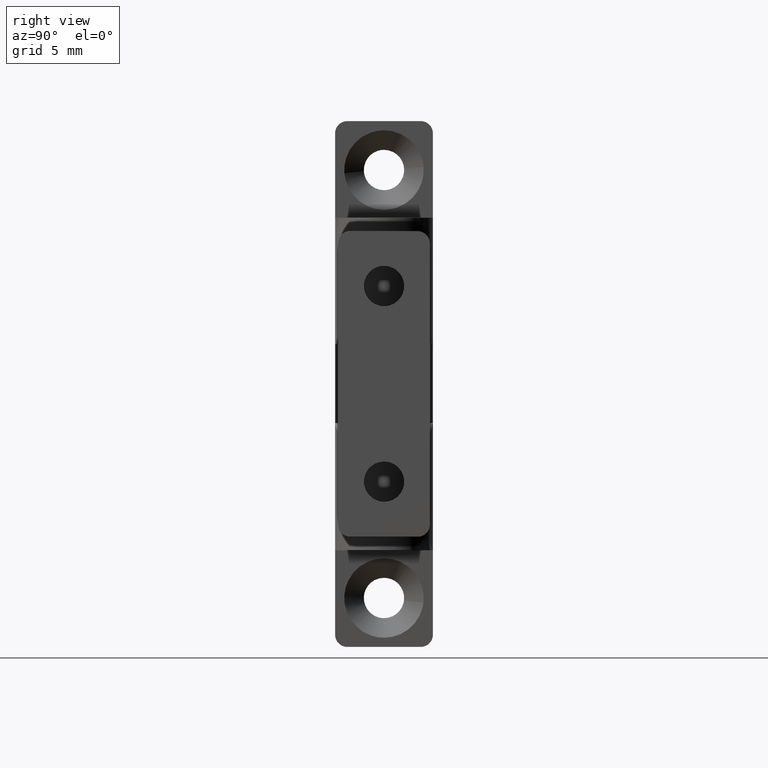
[diagram: clean part render]
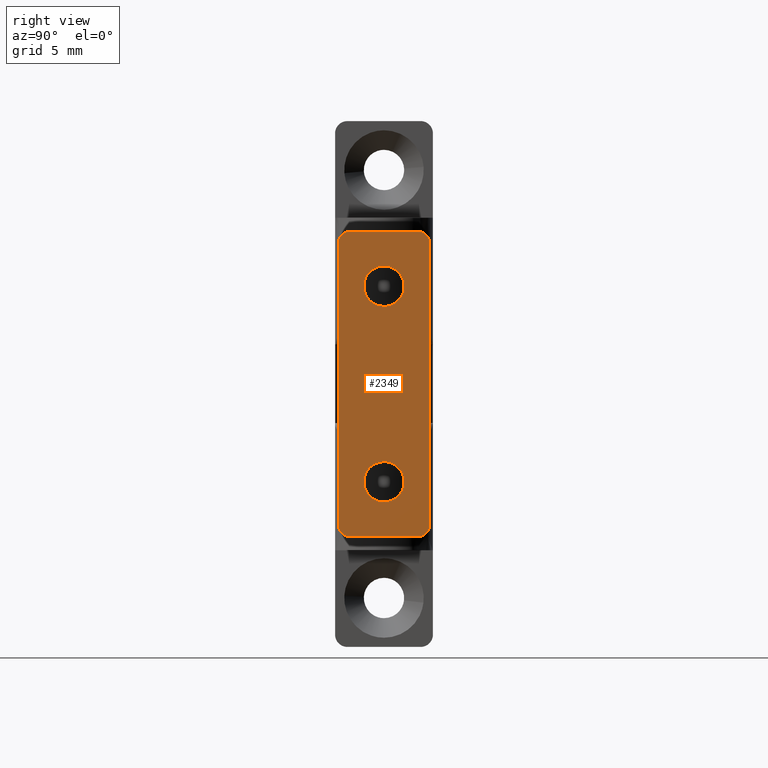
[diagram: same view with one face highlighted and labeled with its STEP entity id]
A machine part, right view. The second image highlights one B-rep face of the part: STEP entity #2349.
In plain terms, the highlighted face is a freeform B-spline surface patch.
Its self-contained STEP definition (entity closure, byte-faithful):
#881=CARTESIAN_POINT('',(7.870542492042405,-1.644913600659137,40.802882948054993));
#882=VERTEX_POINT('',#881);
#888=CARTESIAN_POINT('',(9.650000000000000,0.0,40.802882948054993));
#889=VERTEX_POINT('',#888);
#890=CARTESIAN_POINT('',(7.870542492042405,-1.644913600659137,40.802882948054986));
#891=CARTESIAN_POINT('',(7.935171323430664,-1.650000000000001,40.802882948054986));
#892=CARTESIAN_POINT('',(8.0,-1.650000000000000,40.802882948054993));
#893=CARTESIAN_POINT('',(9.650000000000000,-1.649999999999999,40.802882948055000));
#894=CARTESIAN_POINT('',(9.650000000000000,0.0,40.802882948054993));
#902=(BOUNDED_CURVE()B_SPLINE_CURVE(2,(#890,#891,#892,#893,#894),.UNSPECIFIED.,.F.,.U.)B_SPLINE_CURVE_WITH_KNOTS((3,2,3),(0.736331300631381,0.750000000000000,1.0),.UNSPECIFIED.)CURVE()GEOMETRIC_REPRESENTATION_ITEM()RATIONAL_B_SPLINE_CURVE((0.969723356168923,0.983986122579727,1.0,0.707106781186548,1.0))REPRESENTATION_ITEM(''));
#903=EDGE_CURVE('',#882,#889,#902,.T.);
#905=CARTESIAN_POINT('',(8.223321994554620,1.634817202854235,40.802882948055000));
#906=VERTEX_POINT('',#905);
#907=CARTESIAN_POINT('',(9.650000000000000,0.0,40.802882948054993));
#908=CARTESIAN_POINT('',(9.649999999999999,1.439927781997125,40.802882948055000));
#909=CARTESIAN_POINT('',(8.223321994554620,1.634817202854236,40.802882948054993));
#917=(BOUNDED_CURVE()B_SPLINE_CURVE(2,(#907,#908,#909),.UNSPECIFIED.,.F.,.U.)B_SPLINE_CURVE_WITH_KNOTS((3,3),(0.0,0.226621627895042),.UNSPECIFIED.)CURVE()GEOMETRIC_REPRESENTATION_ITEM()RATIONAL_B_SPLINE_CURVE((1.0,0.734496247812306,0.950343635888749))REPRESENTATION_ITEM(''));
#918=EDGE_CURVE('',#889,#906,#917,.T.);
#968=CARTESIAN_POINT('',(6.350000000000000,0.0,40.802882948054993));
#969=VERTEX_POINT('',#968);
#970=CARTESIAN_POINT('',(8.223321994554620,1.634817202854235,40.802882948054986));
#971=CARTESIAN_POINT('',(8.112177107091062,1.650000000000001,40.802882948054993));
#972=CARTESIAN_POINT('',(8.0,1.650000000000000,40.802882948054993));
#973=CARTESIAN_POINT('',(6.350000000000000,1.649999999999999,40.802882948055000));
#974=CARTESIAN_POINT('',(6.350000000000000,0.0,40.802882948054993));
#982=(BOUNDED_CURVE()B_SPLINE_CURVE(2,(#970,#971,#972,#973,#974),.UNSPECIFIED.,.F.,.U.)B_SPLINE_CURVE_WITH_KNOTS((3,2,3),(0.226621627895043,0.250000000000000,0.500000000000000),.UNSPECIFIED.)CURVE()GEOMETRIC_REPRESENTATION_ITEM()RATIONAL_B_SPLINE_CURVE((0.950343635888749,0.972610533374241,1.0,0.707106781186548,1.0))REPRESENTATION_ITEM(''));
#983=EDGE_CURVE('',#906,#969,#982,.T.);
#985=CARTESIAN_POINT('',(6.350000000000000,0.0,40.802882948054993));
#986=CARTESIAN_POINT('',(6.350000000000000,-1.525244311223668,40.802882948055000));
#987=CARTESIAN_POINT('',(7.870542492042405,-1.644913600659137,40.802882948054986));
#995=(BOUNDED_CURVE()B_SPLINE_CURVE(2,(#985,#986,#987),.UNSPECIFIED.,.F.,.U.)B_SPLINE_CURVE_WITH_KNOTS((3,3),(0.500000000000000,0.736331300631381),.UNSPECIFIED.)CURVE()GEOMETRIC_REPRESENTATION_ITEM()RATIONAL_B_SPLINE_CURVE((1.0,0.723120658606821,0.969723356168922))REPRESENTATION_ITEM(''));
#996=EDGE_CURVE('',#969,#882,#995,.T.);
#1283=CARTESIAN_POINT('',(-7.899269909752803,-1.646922417395182,40.802882948054993));
#1284=VERTEX_POINT('',#1283);
#1290=CARTESIAN_POINT('',(-6.350000000000000,0.0,40.802882948054993));
#1291=VERTEX_POINT('',#1290);
#1292=CARTESIAN_POINT('',(-6.350000000000000,0.0,40.802882948054993));
#1293=CARTESIAN_POINT('',(-6.350000000000001,-1.552165010366669,40.802882948054993));
#1294=CARTESIAN_POINT('',(-7.899269909752803,-1.646922417395183,40.802882948054986));
#1302=(BOUNDED_CURVE()B_SPLINE_CURVE(2,(#1292,#1293,#1294),.UNSPECIFIED.,.F.,.U.)B_SPLINE_CURVE_WITH_KNOTS((3,3),(0.500000000000000,0.739332962238892),.UNSPECIFIED.)CURVE()GEOMETRIC_REPRESENTATION_ITEM()RATIONAL_B_SPLINE_CURVE((1.0,0.719603993286770,0.976072041666608))REPRESENTATION_ITEM(''));
#1303=EDGE_CURVE('',#1291,#1284,#1302,.T.);
#1305=CARTESIAN_POINT('',(-9.650000000000000,0.0,40.802882948054993));
#1306=VERTEX_POINT('',#1305);
#1307=CARTESIAN_POINT('',(-9.650000000000000,0.0,40.802882948054993));
#1308=CARTESIAN_POINT('',(-9.650000000000000,1.649999999999999,40.802882948055000));
#1309=CARTESIAN_POINT('',(-8.0,1.650000000000000,40.802882948054993));
#1310=CARTESIAN_POINT('',(-6.350000000000000,1.649999999999999,40.802882948055000));
#1311=CARTESIAN_POINT('',(-6.350000000000000,0.0,40.802882948054993));
#1319=(BOUNDED_CURVE()B_SPLINE_CURVE(2,(#1307,#1308,#1309,#1310,#1311),.UNSPECIFIED.,.F.,.U.)B_SPLINE_CURVE_WITH_KNOTS((3,2,3),(0.0,0.250000000000000,0.500000000000000),.UNSPECIFIED.)CURVE()GEOMETRIC_REPRESENTATION_ITEM()RATIONAL_B_SPLINE_CURVE((1.0,0.707106781186548,1.0,0.707106781186548,1.0))REPRESENTATION_ITEM(''));
#1320=EDGE_CURVE('',#1306,#1291,#1319,.T.);
#1322=CARTESIAN_POINT('',(-9.544636904972970,-0.580169657768765,40.802882948055000));
#1323=VERTEX_POINT('',#1322);
#1324=CARTESIAN_POINT('',(-9.544636904972970,-0.580169657768765,40.802882948055000));
#1325=CARTESIAN_POINT('',(-9.650000000000000,-0.299652187035171,40.802882948054993));
#1326=CARTESIAN_POINT('',(-9.650000000000000,0.0,40.802882948054993));
#1334=(BOUNDED_CURVE()B_SPLINE_CURVE(2,(#1324,#1325,#1326),.UNSPECIFIED.,.F.,.U.)B_SPLINE_CURVE_WITH_KNOTS((3,3),(0.940284170894273,1.0),.UNSPECIFIED.)CURVE()GEOMETRIC_REPRESENTATION_ITEM()RATIONAL_B_SPLINE_CURVE((0.893499554630092,0.930038554396438,1.0))REPRESENTATION_ITEM(''));
#1335=EDGE_CURVE('',#1323,#1306,#1334,.T.);
#1375=CARTESIAN_POINT('',(-7.899269909752803,-1.646922417395182,40.802882948054979));
#1376=CARTESIAN_POINT('',(-7.949587940542607,-1.650000000000000,40.802882948054986));
#1377=CARTESIAN_POINT('',(-8.0,-1.650000000000000,40.802882948054993));
#1378=CARTESIAN_POINT('',(-9.142805832859949,-1.649999999999999,40.802882948054993));
#1379=CARTESIAN_POINT('',(-9.544636904972970,-0.580169657768765,40.802882948055000));
#1387=(BOUNDED_CURVE()B_SPLINE_CURVE(2,(#1375,#1376,#1377,#1378,#1379),.UNSPECIFIED.,.F.,.U.)B_SPLINE_CURVE_WITH_KNOTS((3,2,3),(0.739332962238892,0.750000000000000,0.940284170894272),.UNSPECIFIED.)CURVE()GEOMETRIC_REPRESENTATION_ITEM()RATIONAL_B_SPLINE_CURVE((0.976072041666608,0.987502787899778,1.0,0.777068226790111,0.893499554630090))REPRESENTATION_ITEM(''));
#1388=EDGE_CURVE('',#1284,#1323,#1387,.T.);
#1552=CARTESIAN_POINT('',(-11.500000000000000,3.750000000000000,40.802882948054993));
#1553=VERTEX_POINT('',#1552);
#1554=CARTESIAN_POINT('',(-12.500000000000000,2.750000000000000,40.802882948054993));
#1555=VERTEX_POINT('',#1554);
#1556=CARTESIAN_POINT('',(-11.500000000000000,3.750000000000000,40.802882948054993));
#1557=CARTESIAN_POINT('',(-12.500000000000000,3.749999999999999,40.802882948055000));
#1558=CARTESIAN_POINT('',(-12.500000000000000,2.750000000000000,40.802882948054993));
#1566=(BOUNDED_CURVE()B_SPLINE_CURVE(2,(#1556,#1557,#1558),.UNSPECIFIED.,.F.,.U.)CURVE()GEOMETRIC_REPRESENTATION_ITEM()QUASI_UNIFORM_CURVE()RATIONAL_B_SPLINE_CURVE((1.0,0.707106781186548,1.0))REPRESENTATION_ITEM(''));
#1567=EDGE_CURVE('',#1553,#1555,#1566,.T.);
#1613=CARTESIAN_POINT('',(-12.500000000000000,-2.750000000000000,40.802882948054993));
#1614=VERTEX_POINT('',#1613);
#1615=CARTESIAN_POINT('',(-11.500000000000000,-3.750000000000000,40.802882948054993));
#1616=VERTEX_POINT('',#1615);
#1617=CARTESIAN_POINT('',(-12.500000000000000,-2.750000000000000,40.802882948054993));
#1618=CARTESIAN_POINT('',(-12.500000000000000,-3.749999999999999,40.802882948055000));
#1619=CARTESIAN_POINT('',(-11.500000000000000,-3.750000000000000,40.802882948054993));
#1627=(BOUNDED_CURVE()B_SPLINE_CURVE(2,(#1617,#1618,#1619),.UNSPECIFIED.,.F.,.U.)CURVE()GEOMETRIC_REPRESENTATION_ITEM()QUASI_UNIFORM_CURVE()RATIONAL_B_SPLINE_CURVE((1.0,0.707106781186548,1.0))REPRESENTATION_ITEM(''));
#1628=EDGE_CURVE('',#1614,#1616,#1627,.T.);
#1691=CARTESIAN_POINT('',(11.500000000000000,3.750000000000000,40.802882948054993));
#1692=VERTEX_POINT('',#1691);
#1698=CARTESIAN_POINT('',(12.500000000000000,2.750000000000000,40.802882948054993));
#1699=VERTEX_POINT('',#1698);
#1700=CARTESIAN_POINT('',(12.500000000000000,2.750000000000000,40.802882948054993));
#1701=CARTESIAN_POINT('',(12.500000000000000,3.749999999999999,40.802882948055000));
#1702=CARTESIAN_POINT('',(11.500000000000000,3.750000000000000,40.802882948054993));
#1710=(BOUNDED_CURVE()B_SPLINE_CURVE(2,(#1700,#1701,#1702),.UNSPECIFIED.,.F.,.U.)CURVE()GEOMETRIC_REPRESENTATION_ITEM()QUASI_UNIFORM_CURVE()RATIONAL_B_SPLINE_CURVE((1.0,0.707106781186548,1.0))REPRESENTATION_ITEM(''));
#1711=EDGE_CURVE('',#1699,#1692,#1710,.T.);
#1752=CARTESIAN_POINT('',(12.500000000000000,-2.750000000000000,40.802882948054993));
#1753=VERTEX_POINT('',#1752);
#1759=CARTESIAN_POINT('',(11.500000000000000,-3.750000000000000,40.802882948054993));
#1760=VERTEX_POINT('',#1759);
#1761=CARTESIAN_POINT('',(11.500000000000000,-3.750000000000000,40.802882948054993));
#1762=CARTESIAN_POINT('',(12.500000000000000,-3.749999999999999,40.802882948055000));
#1763=CARTESIAN_POINT('',(12.500000000000000,-2.750000000000000,40.802882948054993));
#1771=(BOUNDED_CURVE()B_SPLINE_CURVE(2,(#1761,#1762,#1763),.UNSPECIFIED.,.F.,.U.)CURVE()GEOMETRIC_REPRESENTATION_ITEM()QUASI_UNIFORM_CURVE()RATIONAL_B_SPLINE_CURVE((1.0,0.707106781186548,1.0))REPRESENTATION_ITEM(''));
#1772=EDGE_CURVE('',#1760,#1753,#1771,.T.);
#1787=CARTESIAN_POINT('',(11.500000000000000,3.750000000000000,40.802882948054993));
#1788=CARTESIAN_POINT('',(-11.500000000000000,3.750000000000000,40.802882948054993));
#1789=QUASI_UNIFORM_CURVE('',1,(#1787,#1788),.UNSPECIFIED.,.F.,.U.);
#1790=EDGE_CURVE('',#1692,#1553,#1789,.T.);
#1937=CARTESIAN_POINT('',(11.500000000000000,-3.750000000000000,40.802882948054993));
#1938=CARTESIAN_POINT('',(-11.500000000000000,-3.750000000000000,40.802882948054993));
#1939=QUASI_UNIFORM_CURVE('',1,(#1937,#1938),.UNSPECIFIED.,.F.,.U.);
#1940=EDGE_CURVE('',#1760,#1616,#1939,.T.);
#2309=CARTESIAN_POINT('',(-12.500000000000000,-2.750000000000000,40.802882948054993));
#2310=CARTESIAN_POINT('',(-12.500000000000000,2.750000000000000,40.802882948054993));
#2311=QUASI_UNIFORM_CURVE('',1,(#2309,#2310),.UNSPECIFIED.,.F.,.U.);
#2312=EDGE_CURVE('',#1614,#1555,#2311,.T.);
#2318=CARTESIAN_POINT('',(13.748749951545150,-4.124624985463544,40.802882948054993));
#2319=CARTESIAN_POINT('',(-13.748750622097401,-4.124624985463544,40.802882948054993));
#2320=CARTESIAN_POINT('',(13.748749951545150,4.124625186629221,40.802882948054993));
#2321=CARTESIAN_POINT('',(-13.748750622097401,4.124625186629221,40.802882948054993));
#2322=B_SPLINE_SURFACE_WITH_KNOTS('',1,1,((#2318,#2320),(#2319,#2321)),.UNSPECIFIED.,.F.,.F.,.U.,(2,2),(2,2),(0.0,27.497500573642551),(0.0,8.249250172092765),.UNSPECIFIED.);
#2323=ORIENTED_EDGE('',*,*,#1940,.F.);
#2324=ORIENTED_EDGE('',*,*,#1772,.T.);
#2325=CARTESIAN_POINT('',(12.500000000000000,-2.750000000000000,40.802882948054993));
#2326=CARTESIAN_POINT('',(12.500000000000000,2.750000000000000,40.802882948054993));
#2327=QUASI_UNIFORM_CURVE('',1,(#2325,#2326),.UNSPECIFIED.,.F.,.U.);
#2328=EDGE_CURVE('',#1753,#1699,#2327,.T.);
#2329=ORIENTED_EDGE('',*,*,#2328,.T.);
#2330=ORIENTED_EDGE('',*,*,#1711,.T.);
#2331=ORIENTED_EDGE('',*,*,#1790,.T.);
#2332=ORIENTED_EDGE('',*,*,#1567,.T.);
#2333=ORIENTED_EDGE('',*,*,#2312,.F.);
#2334=ORIENTED_EDGE('',*,*,#1628,.T.);
#2335=EDGE_LOOP('',(#2323,#2324,#2329,#2330,#2331,#2332,#2333,#2334));
#2336=FACE_OUTER_BOUND('',#2335,.T.);
#2337=ORIENTED_EDGE('',*,*,#1320,.T.);
#2338=ORIENTED_EDGE('',*,*,#1303,.T.);
#2339=ORIENTED_EDGE('',*,*,#1388,.T.);
#2340=ORIENTED_EDGE('',*,*,#1335,.T.);
#2341=EDGE_LOOP('',(#2337,#2338,#2339,#2340));
#2342=FACE_BOUND('',#2341,.T.);
#2343=ORIENTED_EDGE('',*,*,#996,.F.);
#2344=ORIENTED_EDGE('',*,*,#983,.F.);
#2345=ORIENTED_EDGE('',*,*,#918,.F.);
#2346=ORIENTED_EDGE('',*,*,#903,.F.);
#2347=EDGE_LOOP('',(#2343,#2344,#2345,#2346));
#2348=FACE_BOUND('',#2347,.T.);
#2349=ADVANCED_FACE('',(#2336,#2342,#2348),#2322,.F.);